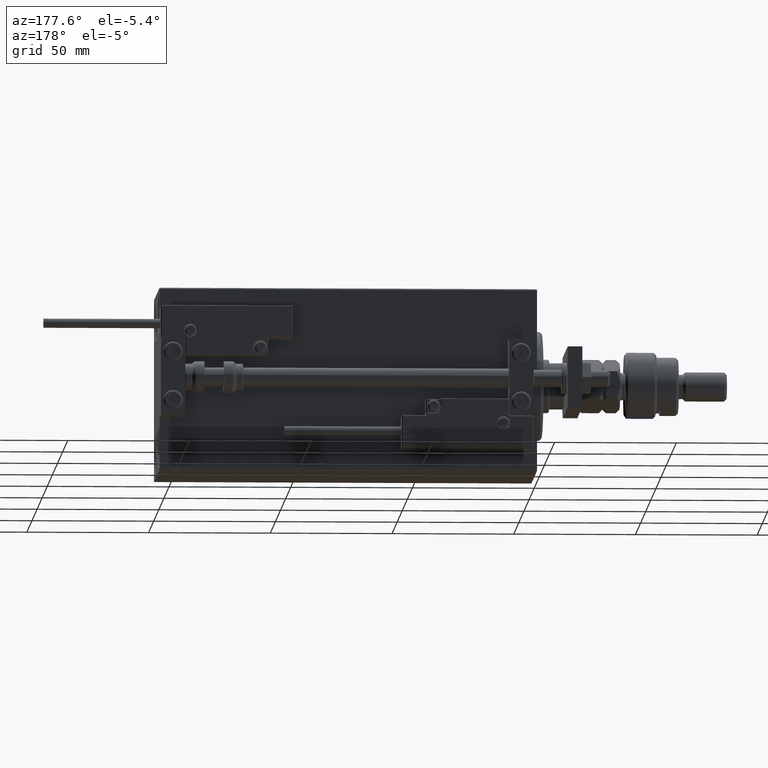
[diagram: clean part render]
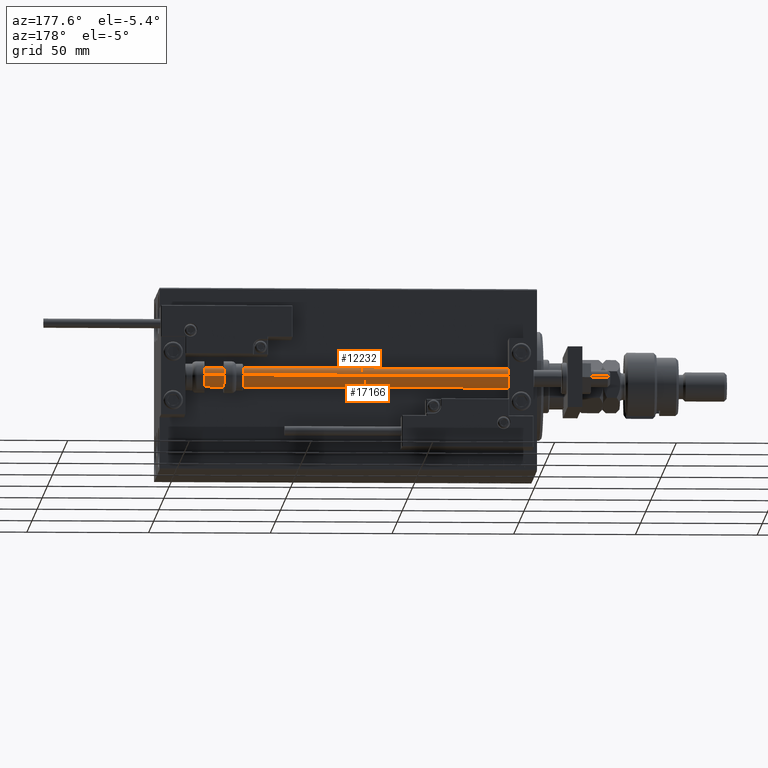
[diagram: same view with one multi-face feature highlighted, each face labeled with its STEP entity id]
A machine part, auxiliary view. The highlighted faces form ONE feature: a constant-radius fillet chain: 2 tangent blend faces with common blend radius 4 mm. The faces share edges in the B-rep.
Their STEP definitions:
[1] entity #12232 (Cylinder):
#463 = CARTESIAN_POINT ( 'NONE',  ( 4.000000000000000000, 4.898587196589412829E-16, 155.0000000000000000 ) ) ;
#6279 = AXIS2_PLACEMENT_3D ( 'NONE', #30656, #42903, #36175 ) ;
#6544 = EDGE_LOOP ( 'NONE', ( #48380, #51090, #16172, #51655 ) ) ;
#6834 = CARTESIAN_POINT ( 'NONE',  ( 4.000000000000000000, 4.898587196589412829E-16, 2.000000000000029310 ) ) ;
#7781 = CARTESIAN_POINT ( 'NONE',  ( 4.000000000000000000, 4.898587196589412829E-16, 155.0000000000000000 ) ) ;
#8129 = DIRECTION ( 'NONE',  ( 0.000000000000000000, 0.000000000000000000, 1.000000000000000000 ) ) ;
#8508 = DIRECTION ( 'NONE',  ( -0.000000000000000000, -0.000000000000000000, -1.000000000000000000 ) ) ;
#9777 = VERTEX_POINT ( 'NONE', #6834 ) ;
#10114 = LINE ( 'NONE', #13592, #35367 ) ;
#12232 = ADVANCED_FACE ( 'NONE', ( #20526 ), #45295, .T. ) ;
#13040 = AXIS2_PLACEMENT_3D ( 'NONE', #20153, #8129, #20684 ) ;
#13592 = CARTESIAN_POINT ( 'NONE',  ( -4.000000000000000000, 0.000000000000000000, 155.0000000000000000 ) ) ;
#14523 = EDGE_CURVE ( 'NONE', #9777, #24284, #49667, .T. ) ;
#15667 = LINE ( 'NONE', #463, #18526 ) ;
#16172 = ORIENTED_EDGE ( 'NONE', *, *, #14523, .T. ) ;
#18526 = VECTOR ( 'NONE', #52729, 1000.000000000000000 ) ;
#19400 = EDGE_CURVE ( 'NONE', #44805, #24284, #10114, .T. ) ;
#20153 = CARTESIAN_POINT ( 'NONE',  ( 0.000000000000000000, 0.000000000000000000, 155.0000000000000000 ) ) ;
#20526 = FACE_OUTER_BOUND ( 'NONE', #6544, .T. ) ;
#20684 = DIRECTION ( 'NONE',  ( 1.000000000000000000, 0.000000000000000000, 0.000000000000000000 ) ) ;
#20946 = CARTESIAN_POINT ( 'NONE',  ( -4.000000000000000000, 0.000000000000000000, 155.0000000000000000 ) ) ;
#24284 = VERTEX_POINT ( 'NONE', #52443 ) ;
#27506 = CIRCLE ( 'NONE', #13040, 4.000000000000000000 ) ;
#30415 = VERTEX_POINT ( 'NONE', #7781 ) ;
#30656 = CARTESIAN_POINT ( 'NONE',  ( 0.000000000000000000, 0.000000000000000000, 2.000000000000029310 ) ) ;
#32277 = EDGE_CURVE ( 'NONE', #30415, #9777, #15667, .T. ) ;
#35367 = VECTOR ( 'NONE', #46633, 1000.000000000000000 ) ;
#36175 = DIRECTION ( 'NONE',  ( 1.000000000000000000, 0.000000000000000000, 0.000000000000000000 ) ) ;
#36786 = CARTESIAN_POINT ( 'NONE',  ( 0.000000000000000000, 0.000000000000000000, 155.0000000000000000 ) ) ;
#41957 = AXIS2_PLACEMENT_3D ( 'NONE', #36786, #8508, #45018 ) ;
#42903 = DIRECTION ( 'NONE',  ( -0.000000000000000000, -0.000000000000000000, 1.000000000000000000 ) ) ;
#44805 = VERTEX_POINT ( 'NONE', #20946 ) ;
#45018 = DIRECTION ( 'NONE',  ( -1.000000000000000000, 0.000000000000000000, 0.000000000000000000 ) ) ;
#45295 = CYLINDRICAL_SURFACE ( 'NONE', #41957, 4.000000000000000000 ) ;
#46633 = DIRECTION ( 'NONE',  ( -0.000000000000000000, -0.000000000000000000, -1.000000000000000000 ) ) ;
#47424 = EDGE_CURVE ( 'NONE', #30415, #44805, #27506, .T. ) ;
#48380 = ORIENTED_EDGE ( 'NONE', *, *, #47424, .F. ) ;
#49667 = CIRCLE ( 'NONE', #6279, 4.000000000000000000 ) ;
#51090 = ORIENTED_EDGE ( 'NONE', *, *, #32277, .T. ) ;
#51655 = ORIENTED_EDGE ( 'NONE', *, *, #19400, .F. ) ;
#52443 = CARTESIAN_POINT ( 'NONE',  ( -4.000000000000000000, 0.000000000000000000, 2.000000000000029310 ) ) ;
#52729 = DIRECTION ( 'NONE',  ( -0.000000000000000000, -0.000000000000000000, -1.000000000000000000 ) ) ;
[2] entity #17166 (Cylinder):
#463 = CARTESIAN_POINT ( 'NONE',  ( 4.000000000000000000, 4.898587196589412829E-16, 155.0000000000000000 ) ) ;
#1716 = CARTESIAN_POINT ( 'NONE',  ( 0.000000000000000000, 0.000000000000000000, 155.0000000000000000 ) ) ;
#1984 = FACE_OUTER_BOUND ( 'NONE', #50776, .T. ) ;
#2087 = ORIENTED_EDGE ( 'NONE', *, *, #19400, .T. ) ;
#3397 = DIRECTION ( 'NONE',  ( 1.000000000000000000, 0.000000000000000000, 0.000000000000000000 ) ) ;
#6834 = CARTESIAN_POINT ( 'NONE',  ( 4.000000000000000000, 4.898587196589412829E-16, 2.000000000000029310 ) ) ;
#7781 = CARTESIAN_POINT ( 'NONE',  ( 4.000000000000000000, 4.898587196589412829E-16, 155.0000000000000000 ) ) ;
#9777 = VERTEX_POINT ( 'NONE', #6834 ) ;
#9821 = EDGE_CURVE ( 'NONE', #44805, #30415, #43535, .T. ) ;
#10114 = LINE ( 'NONE', #13592, #35367 ) ;
#11624 = DIRECTION ( 'NONE',  ( 0.000000000000000000, 0.000000000000000000, 1.000000000000000000 ) ) ;
#13592 = CARTESIAN_POINT ( 'NONE',  ( -4.000000000000000000, 0.000000000000000000, 155.0000000000000000 ) ) ;
#14858 = ORIENTED_EDGE ( 'NONE', *, *, #32277, .F. ) ;
#15667 = LINE ( 'NONE', #463, #18526 ) ;
#17166 = ADVANCED_FACE ( 'NONE', ( #1984 ), #26523, .T. ) ;
#18251 = DIRECTION ( 'NONE',  ( -1.000000000000000000, 0.000000000000000000, 0.000000000000000000 ) ) ;
#18526 = VECTOR ( 'NONE', #52729, 1000.000000000000000 ) ;
#19400 = EDGE_CURVE ( 'NONE', #44805, #24284, #10114, .T. ) ;
#19958 = AXIS2_PLACEMENT_3D ( 'NONE', #1716, #41004, #18251 ) ;
#20248 = CIRCLE ( 'NONE', #41514, 4.000000000000000000 ) ;
#20575 = AXIS2_PLACEMENT_3D ( 'NONE', #48140, #11624, #27892 ) ;
#20946 = CARTESIAN_POINT ( 'NONE',  ( -4.000000000000000000, 0.000000000000000000, 155.0000000000000000 ) ) ;
#24284 = VERTEX_POINT ( 'NONE', #52443 ) ;
#26523 = CYLINDRICAL_SURFACE ( 'NONE', #19958, 4.000000000000000000 ) ;
#27892 = DIRECTION ( 'NONE',  ( 1.000000000000000000, 0.000000000000000000, 0.000000000000000000 ) ) ;
#29068 = ORIENTED_EDGE ( 'NONE', *, *, #9821, .F. ) ;
#30415 = VERTEX_POINT ( 'NONE', #7781 ) ;
#32270 = EDGE_CURVE ( 'NONE', #24284, #9777, #20248, .T. ) ;
#32277 = EDGE_CURVE ( 'NONE', #30415, #9777, #15667, .T. ) ;
#35367 = VECTOR ( 'NONE', #46633, 1000.000000000000000 ) ;
#41004 = DIRECTION ( 'NONE',  ( -0.000000000000000000, -0.000000000000000000, -1.000000000000000000 ) ) ;
#41514 = AXIS2_PLACEMENT_3D ( 'NONE', #44709, #48715, #3397 ) ;
#42399 = ORIENTED_EDGE ( 'NONE', *, *, #32270, .T. ) ;
#43535 = CIRCLE ( 'NONE', #20575, 4.000000000000000000 ) ;
#44709 = CARTESIAN_POINT ( 'NONE',  ( 0.000000000000000000, 0.000000000000000000, 2.000000000000029310 ) ) ;
#44805 = VERTEX_POINT ( 'NONE', #20946 ) ;
#46633 = DIRECTION ( 'NONE',  ( -0.000000000000000000, -0.000000000000000000, -1.000000000000000000 ) ) ;
#48140 = CARTESIAN_POINT ( 'NONE',  ( 0.000000000000000000, 0.000000000000000000, 155.0000000000000000 ) ) ;
#48715 = DIRECTION ( 'NONE',  ( -0.000000000000000000, -0.000000000000000000, 1.000000000000000000 ) ) ;
#50776 = EDGE_LOOP ( 'NONE', ( #14858, #29068, #2087, #42399 ) ) ;
#52443 = CARTESIAN_POINT ( 'NONE',  ( -4.000000000000000000, 0.000000000000000000, 2.000000000000029310 ) ) ;
#52729 = DIRECTION ( 'NONE',  ( -0.000000000000000000, -0.000000000000000000, -1.000000000000000000 ) ) ;